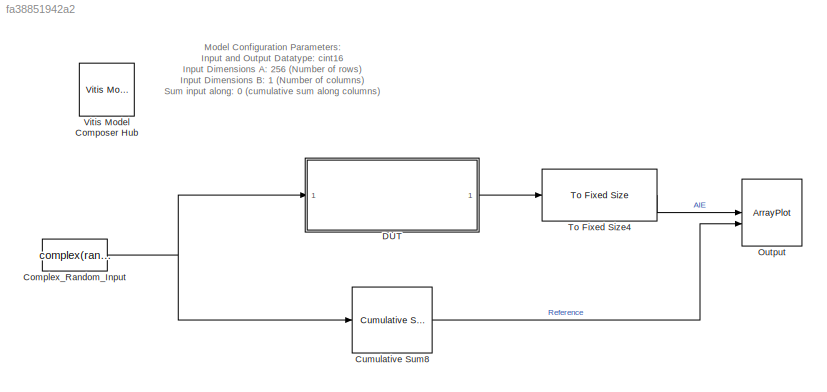
MODEL slx_fa38851942a2
KIND model
CONFIG AbsTol = auto
CONFIG EnableMultiTasking = off
CONFIG FixedStep = auto
CONFIG InitFcn = F_Length = 16;\nG_Length = 16;
CONFIG MaxStep = auto
CONFIG MinStep = auto
CONFIG RelTol = 1e-3
CONFIG SampleTimeConstraint = Unconstrained
CONFIG SolverName = VariableStepAuto
CONFIG StartTime = 0.0
CONFIG StopTime = 1024
BLOCK [Constant] Complex_Random_Input
  OutDataTypeStr = int16
  SampleTime = 1
  Value = complex(randn(1,256),1)'
BLOCK [Reference] Cumulative Sum8  REF=dspmathops/Cumulative
Sum
  SourceBlock = dspmathops/Cumulative\nSum
  SourceType = Cumulative Sum
  UserDataPersistent = on
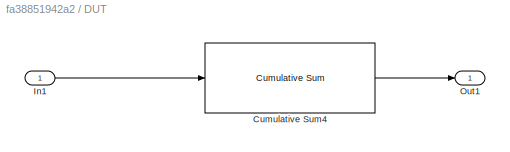
BLOCK [SubSystem] DUT
BLOCK [Reference] DUT/Cumulative Sum4  REF=aieDSP/Cumulative Sum
  SourceBlock = aieDSP/Cumulative Sum
  SourceType = Cumulative Sum
BLOCK [Inport] DUT/In1
BLOCK [Outport] DUT/Out1
BLOCK [ArrayPlot] Output
  GraphicalSettings = {"Style":{"BackgroundColor":[0.12941176470588237,0.12941176470588237,0.12941176470588237],"AxesColor":[0.070588235294117646,0.070588235294117646,0.070588235294117646],"LabelsColor":[0.85098039215686272,0.85098039215686272,0.85098039215686272],"PreserveColors":false,"Visible":[true,false,true,false],"LineStyle":["-","-","-","-"],"LineWidth":[1.5,1.5,1.5,1.5],"BarWidth":[0.9,0.9,0.9,0.9],"LineColor"...<+876ch>
  NumInputPorts = 2
  ScopeFrameLocation = window
  ShowLegend = on
  WasSavedAsWebScope = on
  WindowPosition = [6.000000,94.000000,1910.000000,1029.000000,]
  YLimits = [-290.625 55.625]
BLOCK [Reference] To Fixed Size4  REF=aieUtilities/To Fixed Size
  SourceBlock = aieUtilities/To Fixed Size
  SourceType = To Fixed Size
BLOCK [Reference] Vitis Model Composer Hub  REF=vmcUtilities/Vitis Model Composer Hub
  SourceBlock = vmcUtilities/Vitis Model Composer Hub
  SourceType = VMC Hub
  Tag = genX
  UserDataPersistent = on
ANNOTATION (root): Model Configuration Parameters: Input and Output Datatype: cint16 Input Dimensions A: 256 (Number of rows) Input Dimensions B: 1 (Number of columns) Sum input along: 0 (cumulative sum along columns)
NET Complex_Random_Input:1 -> Cumulative Sum8:1, DUT:1
LINE Cumulative Sum8:1 -> Output:2
LINE DUT/Cumulative Sum4:1 -> DUT/Out1:1
LINE DUT/In1:1 -> DUT/Cumulative Sum4:1
LINE DUT:1 -> To Fixed Size4:1
LINE To Fixed Size4:1 -> Output:1
note: NET lines group one-source signal fan-out (src -> all destinations, sorted); 1:1 wires keep LINE
